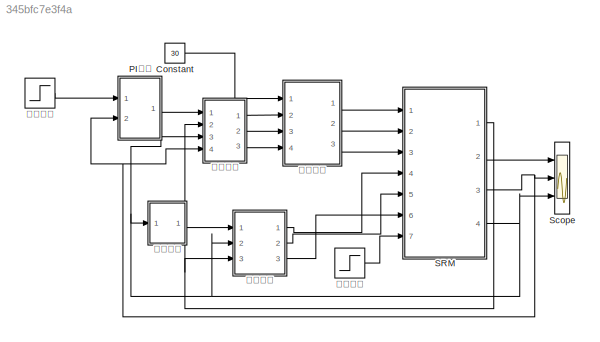
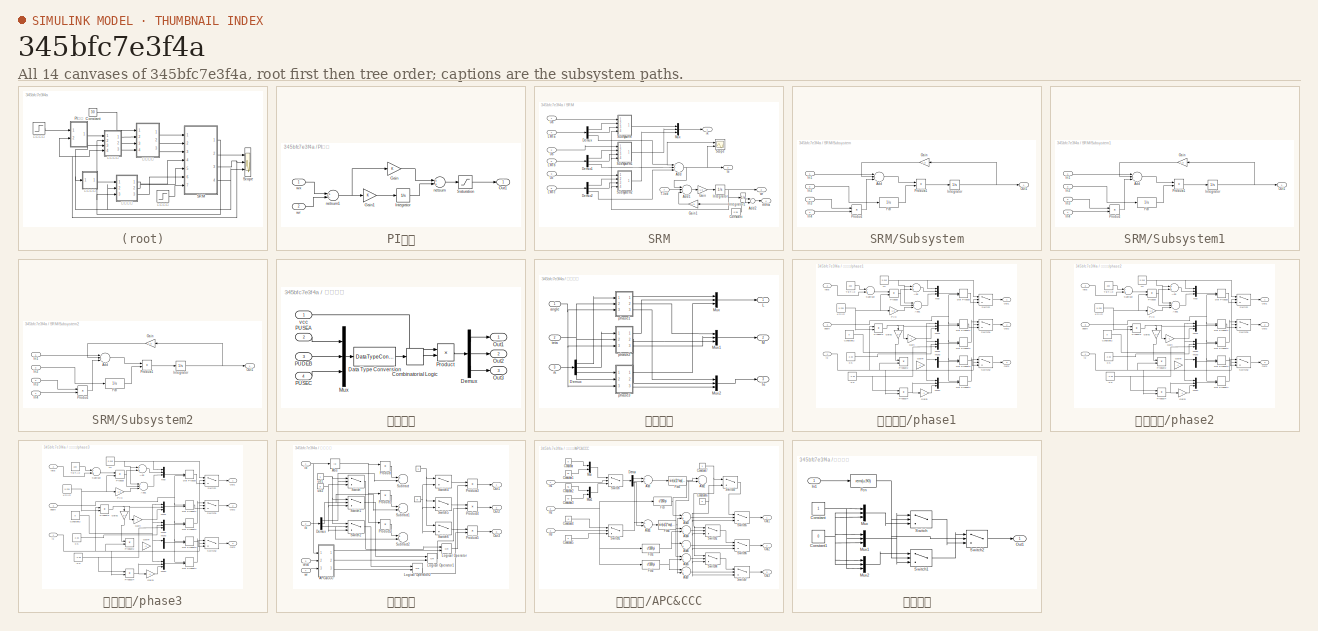
[diagram: thumbnail index - all 14 canvases of the model, root first then tree order]
MODEL slx_345bfc7e3f4a
KIND model
BLOCK [Constant] Constant
  Value = 30
BLOCK [SubSystem] PI控制
  FunctionWithSeparateData = off
  MaskHideContents = off
  MinAlgLoopOccurrences = off
  Opaque = off
  Ports = [2, 1]
  PropExecContextOutsideSubsystem = off
  RTWSystemCode = Auto
  RequestExecContextInheritance = off
BLOCK [Gain] PI控制/Gain
  OutDataTypeStr = Inherit: Inherit via internal rule
  ParamDataTypeStr = Inherit: Inherit via internal rule
  SaturateOnIntegerOverflow = off
BLOCK [Gain] PI控制/Gain1
  OutDataTypeStr = Inherit: Inherit via internal rule
  ParamDataTypeStr = Inherit: Inherit via internal rule
  SaturateOnIntegerOverflow = off
BLOCK [Integrator] PI控制/Integrator
  Ports = [1, 1]
BLOCK [Outport] PI控制/Out1
  IconDisplay = Port number
BLOCK [Saturate] PI控制/Saturation
  InputPortMap = u0
  Ports = [1, 1]
BLOCK [Sum] PI控制/netsum
  Inputs = 2
  Ports = [2, 1]
BLOCK [Sum] PI控制/netsum1
  Inputs = +-
  Ports = [2, 1]
BLOCK [Inport] PI控制/wr
  IconDisplay = Port number
  Port = 2
BLOCK [Inport] PI控制/wx
  IconDisplay = Port number
BLOCK [SubSystem] SRM
  FunctionWithSeparateData = off
  MaskHideContents = off
  MinAlgLoopOccurrences = off
  Opaque = off
  Ports = [7, 4]
  PropExecContextOutsideSubsystem = off
  RTWSystemCode = Auto
  RequestExecContextInheritance = off
BLOCK [Sum] SRM/Add
  InputSameDT = off
  Inputs = +++
  OutDataTypeStr = Inherit: Inherit via internal rule
  Ports = [3, 1]
  SaturateOnIntegerOverflow = off
BLOCK [Sum] SRM/Add1
  InputSameDT = off
  Inputs = +--
  OutDataTypeStr = Inherit: Inherit via internal rule
  Ports = [3, 1]
  SaturateOnIntegerOverflow = off
BLOCK [Sum] SRM/Add2
  InputSameDT = off
  OutDataTypeStr = Inherit: Inherit via internal rule
  Ports = [2, 1]
  SaturateOnIntegerOverflow = off
BLOCK [Constant] SRM/Constant
  Value = 0.28
BLOCK [Demux] SRM/Demux
  DisplayOption = bar
  Outputs = 3
  Ports = [1, 3]
BLOCK [Demux] SRM/Demux1
  DisplayOption = bar
  Outputs = 3
  Ports = [1, 3]
BLOCK [Demux] SRM/Demux2
  DisplayOption = bar
  Outputs = 3
  Ports = [1, 3]
BLOCK [Gain] SRM/Gain
  Gain = 1.3
  OutDataTypeStr = Inherit: Inherit via internal rule
  ParamDataTypeStr = Inherit: Inherit via internal rule
  SaturateOnIntegerOverflow = off
BLOCK [Gain] SRM/Gain1
  Gain = 1.3
  OutDataTypeStr = Inherit: Inherit via internal rule
  ParamDataTypeStr = Inherit: Inherit via internal rule
  SaturateOnIntegerOverflow = off
BLOCK [Integrator] SRM/Integrator
  Ports = [1, 1]
BLOCK [Integrator] SRM/Integrator1
  Ports = [1, 1]
BLOCK [Inport] SRM/LMTa
  IconDisplay = Port number
  Port = 4
BLOCK [Inport] SRM/LMTb
  IconDisplay = Port number
  Port = 5
BLOCK [Inport] SRM/LMTc
  IconDisplay = Port number
  Port = 6
BLOCK [Mux] SRM/Mux
  DisplayOption = bar
  Inputs = 3
  Ports = [3, 1]
BLOCK [Scope] SRM/Scope
  DataFormat = StructureWithTime
  Floating = off
  NumInputPorts = 2
  Ports = [2]
  SampleTime = 0
  ShowLegends = off
  YMax = 5~5
  YMin = -5~-5
BLOCK [SubSystem] SRM/Subsystem
  FunctionWithSeparateData = off
  MaskHideContents = off
  MinAlgLoopOccurrences = off
  Opaque = off
  Ports = [4, 1]
  PropExecContextOutsideSubsystem = off
  RTWSystemCode = Auto
  RequestExecContextInheritance = off
BLOCK [Sum] SRM/Subsystem/Add
  InputSameDT = off
  Inputs = +--
  OutDataTypeStr = Inherit: Inherit via internal rule
  Ports = [3, 1]
  SaturateOnIntegerOverflow = off
BLOCK [Fcn] SRM/Subsystem/Fcn
  Expr = 1/u
BLOCK [Gain] SRM/Subsystem/Gain
  Gain = 1.3
  OutDataTypeStr = Inherit: Inherit via internal rule
  ParamDataTypeStr = Inherit: Inherit via internal rule
  SaturateOnIntegerOverflow = off
BLOCK [Inport] SRM/Subsystem/In1
  IconDisplay = Port number
BLOCK [Inport] SRM/Subsystem/In2
  IconDisplay = Port number
  Port = 2
BLOCK [Inport] SRM/Subsystem/In3
  IconDisplay = Port number
  Port = 3
BLOCK [Inport] SRM/Subsystem/In4
  IconDisplay = Port number
  Port = 4
BLOCK [Integrator] SRM/Subsystem/Integrator
  Ports = [1, 1]
BLOCK [Outport] SRM/Subsystem/Out1
  IconDisplay = Port number
BLOCK [Product] SRM/Subsystem/Product
  InputSameDT = off
  OutDataTypeStr = Inherit: Inherit via internal rule
  Ports = [2, 1]
  RndMeth = Floor
  SaturateOnIntegerOverflow = off
BLOCK [Product] SRM/Subsystem/Product1
  InputSameDT = off
  OutDataTypeStr = Inherit: Inherit via internal rule
  Ports = [2, 1]
  RndMeth = Floor
  SaturateOnIntegerOverflow = off
BLOCK [SubSystem] SRM/Subsystem1
  FunctionWithSeparateData = off
  MaskHideContents = off
  MinAlgLoopOccurrences = off
  Opaque = off
  Ports = [4, 1]
  PropExecContextOutsideSubsystem = off
  RTWSystemCode = Auto
  RequestExecContextInheritance = off
BLOCK [Sum] SRM/Subsystem1/Add
  InputSameDT = off
  Inputs = +--
  OutDataTypeStr = Inherit: Inherit via internal rule
  Ports = [3, 1]
  SaturateOnIntegerOverflow = off
BLOCK [Fcn] SRM/Subsystem1/Fcn
  Expr = 1/u
BLOCK [Gain] SRM/Subsystem1/Gain
  Gain = 1.3
  OutDataTypeStr = Inherit: Inherit via internal rule
  ParamDataTypeStr = Inherit: Inherit via internal rule
  SaturateOnIntegerOverflow = off
BLOCK [Inport] SRM/Subsystem1/In1
  IconDisplay = Port number
BLOCK [Inport] SRM/Subsystem1/In2
  IconDisplay = Port number
  Port = 2
BLOCK [Inport] SRM/Subsystem1/In3
  IconDisplay = Port number
  Port = 3
BLOCK [Inport] SRM/Subsystem1/In4
  IconDisplay = Port number
  Port = 4
BLOCK [Integrator] SRM/Subsystem1/Integrator
  Ports = [1, 1]
BLOCK [Outport] SRM/Subsystem1/Out1
  IconDisplay = Port number
BLOCK [Product] SRM/Subsystem1/Product
  InputSameDT = off
  OutDataTypeStr = Inherit: Inherit via internal rule
  Ports = [2, 1]
  RndMeth = Floor
  SaturateOnIntegerOverflow = off
BLOCK [Product] SRM/Subsystem1/Product1
  InputSameDT = off
  OutDataTypeStr = Inherit: Inherit via internal rule
  Ports = [2, 1]
  RndMeth = Floor
  SaturateOnIntegerOverflow = off
BLOCK [SubSystem] SRM/Subsystem2
  FunctionWithSeparateData = off
  MaskHideContents = off
  MinAlgLoopOccurrences = off
  Opaque = off
  Ports = [4, 1]
  PropExecContextOutsideSubsystem = off
  RTWSystemCode = Auto
  RequestExecContextInheritance = off
BLOCK [Sum] SRM/Subsystem2/Add
  InputSameDT = off
  Inputs = +--
  OutDataTypeStr = Inherit: Inherit via internal rule
  Ports = [3, 1]
  SaturateOnIntegerOverflow = off
BLOCK [Fcn] SRM/Subsystem2/Fcn
  Expr = 1/u
BLOCK [Gain] SRM/Subsystem2/Gain
  Gain = 1.3
  OutDataTypeStr = Inherit: Inherit via internal rule
  ParamDataTypeStr = Inherit: Inherit via internal rule
  SaturateOnIntegerOverflow = off
BLOCK [Inport] SRM/Subsystem2/In1
  IconDisplay = Port number
BLOCK [Inport] SRM/Subsystem2/In2
  IconDisplay = Port number
  Port = 2
BLOCK [Inport] SRM/Subsystem2/In3
  IconDisplay = Port number
  Port = 3
BLOCK [Inport] SRM/Subsystem2/In4
  IconDisplay = Port number
  Port = 4
BLOCK [Integrator] SRM/Subsystem2/Integrator
  Ports = [1, 1]
BLOCK [Outport] SRM/Subsystem2/Out1
  IconDisplay = Port number
BLOCK [Product] SRM/Subsystem2/Product
  InputSameDT = off
  OutDataTypeStr = Inherit: Inherit via internal rule
  Ports = [2, 1]
  RndMeth = Floor
  SaturateOnIntegerOverflow = off
BLOCK [Product] SRM/Subsystem2/Product1
  InputSameDT = off
  OutDataTypeStr = Inherit: Inherit via internal rule
  Ports = [2, 1]
  RndMeth = Floor
  SaturateOnIntegerOverflow = off
BLOCK [Inport] SRM/T-lod
  IconDisplay = Port number
  Port = 7
BLOCK [Inport] SRM/Ua
  IconDisplay = Port number
BLOCK [Inport] SRM/Ub
  IconDisplay = Port number
  Port = 2
BLOCK [Inport] SRM/Uc
  IconDisplay = Port number
  Port = 3
BLOCK [Outport] SRM/ik
  IconDisplay = Port number
BLOCK [Outport] SRM/te
  IconDisplay = Port number
  Port = 2
BLOCK [Outport] SRM/theta
  IconDisplay = Port number
  Port = 4
BLOCK [Outport] SRM/wr
  IconDisplay = Port number
  Port = 3
BLOCK [Scope] Scope
  DataFormat = StructureWithTime
  Floating = off
  NumInputPorts = 3
  Ports = [3]
  SampleTime = 0
  SaveName = ScopeData1
  ShowLegends = off
  YMax = 5~5~5
  YMin = -5~-5~-5
BLOCK [SubSystem] 功率变换
  FunctionWithSeparateData = off
  MaskHideContents = off
  MinAlgLoopOccurrences = off
  Opaque = off
  Ports = [4, 3]
  PropExecContextOutsideSubsystem = off
  RTWSystemCode = Auto
  RequestExecContextInheritance = off
BLOCK [CombinatorialLogic] 功率变换/Combinatorial Logic
BLOCK [DataTypeConversion] 功率变换/Data Type Conversion
  RndMeth = Floor
  SaturateOnIntegerOverflow = off
BLOCK [Demux] 功率变换/Demux
  DisplayOption = bar
  Outputs = 3
  Ports = [1, 3]
BLOCK [Mux] 功率变换/Mux
  DisplayOption = bar
  Inputs = 3
  Ports = [3, 1]
BLOCK [Outport] 功率变换/Out1
  IconDisplay = Port number
BLOCK [Outport] 功率变换/Out2
  IconDisplay = Port number
  Port = 2
BLOCK [Outport] 功率变换/Out3
  IconDisplay = Port number
  Port = 3
BLOCK [Inport] 功率变换/PUDEB
  IconDisplay = Port number
  Port = 3
BLOCK [Inport] 功率变换/PUSEA
  IconDisplay = Port number
  Port = 2
BLOCK [Inport] 功率变换/PUSEC
  IconDisplay = Port number
  Port = 4
BLOCK [Product] 功率变换/Product
  InputSameDT = off
  OutDataTypeStr = Inherit: Inherit via internal rule
  Ports = [2, 1]
  RndMeth = Floor
  SaturateOnIntegerOverflow = off
BLOCK [Inport] 功率变换/vcc
  IconDisplay = Port number
BLOCK [SubSystem] 参数计算
  FunctionWithSeparateData = off
  MaskHideContents = off
  MinAlgLoopOccurrences = off
  Opaque = off
  Ports = [3, 3]
  PropExecContextOutsideSubsystem = off
  RTWSystemCode = Auto
  RequestExecContextInheritance = off
BLOCK [Demux] 参数计算/Demux
  DisplayOption = bar
  Outputs = 3
  Ports = [1, 3]
BLOCK [Outport] 参数计算/L
  IconDisplay = Port number
BLOCK [Outport] 参数计算/M
  IconDisplay = Port number
  Port = 2
BLOCK [Mux] 参数计算/Mux
  DisplayOption = bar
  Inputs = 3
  Ports = [3, 1]
BLOCK [Mux] 参数计算/Mux1
  DisplayOption = bar
  Inputs = 3
  Ports = [3, 1]
BLOCK [Mux] 参数计算/Mux2
  DisplayOption = bar
  Inputs = 3
  Ports = [3, 1]
BLOCK [Outport] 参数计算/Te
  IconDisplay = Port number
  Port = 3
BLOCK [Inport] 参数计算/angle
  IconDisplay = Port number
BLOCK [Inport] 参数计算/ik
  IconDisplay = Port number
  Port = 3
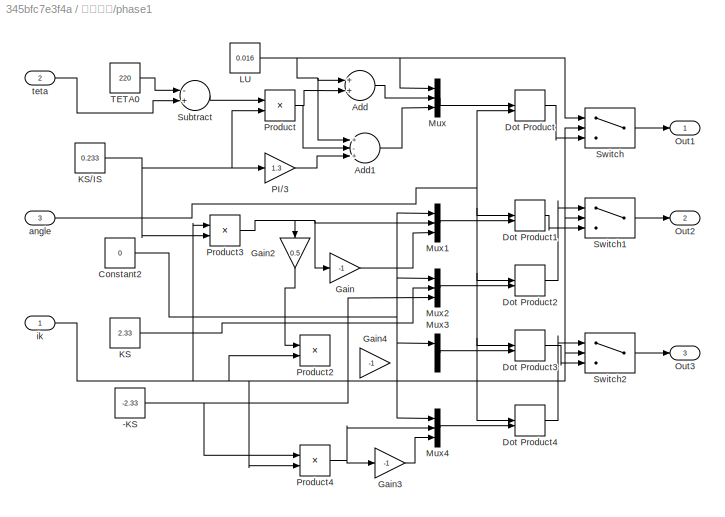
BLOCK [SubSystem] 参数计算/phase1
  FunctionWithSeparateData = off
  MaskHideContents = off
  MinAlgLoopOccurrences = off
  Opaque = off
  Ports = [3, 3]
  PropExecContextOutsideSubsystem = off
  RTWSystemCode = Auto
  RequestExecContextInheritance = off
BLOCK [Constant] 参数计算/phase1/-KS
  Value = -2.33
BLOCK [Sum] 参数计算/phase1/Add
  InputSameDT = off
  OutDataTypeStr = Inherit: Inherit via internal rule
  Ports = [2, 1]
  SaturateOnIntegerOverflow = off
BLOCK [Sum] 参数计算/phase1/Add1
  InputSameDT = off
  Inputs = +-+
  OutDataTypeStr = Inherit: Inherit via internal rule
  Ports = [3, 1]
  SaturateOnIntegerOverflow = off
BLOCK [Constant] 参数计算/phase1/Constant2
  Value = 0
BLOCK [DotProduct] 参数计算/phase1/Dot Product
  OutDataTypeStr = Inherit: Inherit via internal rule
BLOCK [DotProduct] 参数计算/phase1/Dot Product1
  OutDataTypeStr = Inherit: Inherit via internal rule
BLOCK [DotProduct] 参数计算/phase1/Dot Product2
  OutDataTypeStr = Inherit: Inherit via internal rule
BLOCK [DotProduct] 参数计算/phase1/Dot Product3
  OutDataTypeStr = Inherit: Inherit via internal rule
BLOCK [DotProduct] 参数计算/phase1/Dot Product4
  OutDataTypeStr = Inherit: Inherit via internal rule
BLOCK [Gain] 参数计算/phase1/Gain
  Gain = -1
  OutDataTypeStr = Inherit: Inherit via internal rule
  ParamDataTypeStr = Inherit: Inherit via internal rule
  SaturateOnIntegerOverflow = off
BLOCK [Gain] 参数计算/phase1/Gain2
  Gain = 0.5
  OutDataTypeStr = Inherit: Inherit via internal rule
  ParamDataTypeStr = Inherit: Inherit via internal rule
  SaturateOnIntegerOverflow = off
BLOCK [Gain] 参数计算/phase1/Gain3
  Gain = -1
  OutDataTypeStr = Inherit: Inherit via internal rule
  ParamDataTypeStr = Inherit: Inherit via internal rule
  SaturateOnIntegerOverflow = off
BLOCK [Gain] 参数计算/phase1/Gain4
  Gain = -1
  OutDataTypeStr = Inherit: Inherit via internal rule
  ParamDataTypeStr = Inherit: Inherit via internal rule
  SaturateOnIntegerOverflow = off
BLOCK [Constant] 参数计算/phase1/KS
  Value = 2.33
BLOCK [Constant] 参数计算/phase1/KS//IS
  Value = 0.233
BLOCK [Constant] 参数计算/phase1/LU
  Value = 0.016
BLOCK [Mux] 参数计算/phase1/Mux
  DisplayOption = bar
  Inputs = 3
  Ports = [3, 1]
BLOCK [Mux] 参数计算/phase1/Mux1
  DisplayOption = bar
  Inputs = 3
  Ports = [3, 1]
BLOCK [Mux] 参数计算/phase1/Mux2
  DisplayOption = bar
  Inputs = 3
  Ports = [3, 1]
BLOCK [Mux] 参数计算/phase1/Mux3
  DisplayOption = bar
  Inputs = 3
  Ports = [3, 1]
BLOCK [Mux] 参数计算/phase1/Mux4
  DisplayOption = bar
  Inputs = 3
  Ports = [3, 1]
BLOCK [Outport] 参数计算/phase1/Out1
  IconDisplay = Port number
BLOCK [Outport] 参数计算/phase1/Out2
  IconDisplay = Port number
  Port = 2
BLOCK [Outport] 参数计算/phase1/Out3
  IconDisplay = Port number
  Port = 3
BLOCK [Gain] 参数计算/phase1/PI//3
  Gain = 1.3
  OutDataTypeStr = Inherit: Inherit via internal rule
  ParamDataTypeStr = Inherit: Inherit via internal rule
  SaturateOnIntegerOverflow = off
BLOCK [Product] 参数计算/phase1/Product
  InputSameDT = off
  OutDataTypeStr = Inherit: Inherit via internal rule
  Ports = [2, 1]
  RndMeth = Floor
  SaturateOnIntegerOverflow = off
BLOCK [Product] 参数计算/phase1/Product2
  InputSameDT = off
  OutDataTypeStr = Inherit: Inherit via internal rule
  Ports = [2, 1]
  RndMeth = Floor
  SaturateOnIntegerOverflow = off
BLOCK [Product] 参数计算/phase1/Product3
  InputSameDT = off
  OutDataTypeStr = Inherit: Inherit via internal rule
  Ports = [2, 1]
  RndMeth = Floor
  SaturateOnIntegerOverflow = off
BLOCK [Product] 参数计算/phase1/Product4
  InputSameDT = off
  OutDataTypeStr = Inherit: Inherit via internal rule
  Ports = [2, 1]
  RndMeth = Floor
  SaturateOnIntegerOverflow = off
BLOCK [Sum] 参数计算/phase1/Subtract
  InputSameDT = off
  Inputs = -+
  OutDataTypeStr = Inherit: Inherit via internal rule
  Ports = [2, 1]
  SaturateOnIntegerOverflow = off
BLOCK [Switch] 参数计算/phase1/Switch
  InputSameDT = off
  SaturateOnIntegerOverflow = off
BLOCK [Switch] 参数计算/phase1/Switch1
  InputSameDT = off
  SaturateOnIntegerOverflow = off
BLOCK [Switch] 参数计算/phase1/Switch2
  InputSameDT = off
  SaturateOnIntegerOverflow = off
BLOCK [Constant] 参数计算/phase1/TETA0
  Value = 220
BLOCK [Inport] 参数计算/phase1/angle
  IconDisplay = Port number
  Port = 3
BLOCK [Inport] 参数计算/phase1/ik
  IconDisplay = Port number
BLOCK [Inport] 参数计算/phase1/teta
  IconDisplay = Port number
  Port = 2
BLOCK [SubSystem] 参数计算/phase2
  FunctionWithSeparateData = off
  MaskHideContents = off
  MinAlgLoopOccurrences = off
  Opaque = off
  Ports = [3, 3]
  PropExecContextOutsideSubsystem = off
  RTWSystemCode = Auto
  RequestExecContextInheritance = off
BLOCK [Constant] 参数计算/phase2/-KS
  Value = -2.33
BLOCK [Sum] 参数计算/phase2/Add
  InputSameDT = off
  OutDataTypeStr = Inherit: Inherit via internal rule
  Ports = [2, 1]
  SaturateOnIntegerOverflow = off
BLOCK [Sum] 参数计算/phase2/Add1
  InputSameDT = off
  Inputs = +-+
  OutDataTypeStr = Inherit: Inherit via internal rule
  Ports = [3, 1]
  SaturateOnIntegerOverflow = off
BLOCK [Constant] 参数计算/phase2/Constant2
  Value = 0
BLOCK [DotProduct] 参数计算/phase2/Dot Product
  OutDataTypeStr = Inherit: Inherit via internal rule
BLOCK [DotProduct] 参数计算/phase2/Dot Product1
  OutDataTypeStr = Inherit: Inherit via internal rule
BLOCK [DotProduct] 参数计算/phase2/Dot Product2
  OutDataTypeStr = Inherit: Inherit via internal rule
BLOCK [DotProduct] 参数计算/phase2/Dot Product3
  OutDataTypeStr = Inherit: Inherit via internal rule
BLOCK [DotProduct] 参数计算/phase2/Dot Product4
  OutDataTypeStr = Inherit: Inherit via internal rule
BLOCK [Gain] 参数计算/phase2/Gain
  Gain = -1
  OutDataTypeStr = Inherit: Inherit via internal rule
  ParamDataTypeStr = Inherit: Inherit via internal rule
  SaturateOnIntegerOverflow = off
BLOCK [Gain] 参数计算/phase2/Gain2
  Gain = 0.5
  OutDataTypeStr = Inherit: Inherit via internal rule
  ParamDataTypeStr = Inherit: Inherit via internal rule
  SaturateOnIntegerOverflow = off
BLOCK [Gain] 参数计算/phase2/Gain3
  Gain = -1
  OutDataTypeStr = Inherit: Inherit via internal rule
  ParamDataTypeStr = Inherit: Inherit via internal rule
  SaturateOnIntegerOverflow = off
BLOCK [Gain] 参数计算/phase2/Gain4
  Gain = -1
  OutDataTypeStr = Inherit: Inherit via internal rule
  ParamDataTypeStr = Inherit: Inherit via internal rule
  SaturateOnIntegerOverflow = off
BLOCK [Constant] 参数计算/phase2/KS
  Value = 2.33
BLOCK [Constant] 参数计算/phase2/KS//IS
  Value = 0.233
BLOCK [Constant] 参数计算/phase2/LU
  Value = 0.016
BLOCK [Mux] 参数计算/phase2/Mux
  DisplayOption = bar
  Inputs = 3
  Ports = [3, 1]
BLOCK [Mux] 参数计算/phase2/Mux1
  DisplayOption = bar
  Inputs = 3
  Ports = [3, 1]
BLOCK [Mux] 参数计算/phase2/Mux2
  DisplayOption = bar
  Inputs = 3
  Ports = [3, 1]
BLOCK [Mux] 参数计算/phase2/Mux3
  DisplayOption = bar
  Inputs = 3
  Ports = [3, 1]
BLOCK [Mux] 参数计算/phase2/Mux4
  DisplayOption = bar
  Inputs = 3
  Ports = [3, 1]
BLOCK [Outport] 参数计算/phase2/Out1
  IconDisplay = Port number
BLOCK [Outport] 参数计算/phase2/Out2
  IconDisplay = Port number
  Port = 2
BLOCK [Outport] 参数计算/phase2/Out3
  IconDisplay = Port number
  Port = 3
BLOCK [Gain] 参数计算/phase2/PI//3
  Gain = 1.3
  OutDataTypeStr = Inherit: Inherit via internal rule
  ParamDataTypeStr = Inherit: Inherit via internal rule
  SaturateOnIntegerOverflow = off
BLOCK [Product] 参数计算/phase2/Product
  InputSameDT = off
  OutDataTypeStr = Inherit: Inherit via internal rule
  Ports = [2, 1]
  RndMeth = Floor
  SaturateOnIntegerOverflow = off
BLOCK [Product] 参数计算/phase2/Product2
  InputSameDT = off
  OutDataTypeStr = Inherit: Inherit via internal rule
  Ports = [2, 1]
  RndMeth = Floor
  SaturateOnIntegerOverflow = off
BLOCK [Product] 参数计算/phase2/Product3
  InputSameDT = off
  OutDataTypeStr = Inherit: Inherit via internal rule
  Ports = [2, 1]
  RndMeth = Floor
  SaturateOnIntegerOverflow = off
BLOCK [Product] 参数计算/phase2/Product4
  InputSameDT = off
  OutDataTypeStr = Inherit: Inherit via internal rule
  Ports = [2, 1]
  RndMeth = Floor
  SaturateOnIntegerOverflow = off
BLOCK [Sum] 参数计算/phase2/Subtract
  InputSameDT = off
  Inputs = -+
  OutDataTypeStr = Inherit: Inherit via internal rule
  Ports = [2, 1]
  SaturateOnIntegerOverflow = off
BLOCK [Switch] 参数计算/phase2/Switch
  InputSameDT = off
  SaturateOnIntegerOverflow = off
BLOCK [Switch] 参数计算/phase2/Switch1
  InputSameDT = off
  SaturateOnIntegerOverflow = off
BLOCK [Switch] 参数计算/phase2/Switch2
  InputSameDT = off
  SaturateOnIntegerOverflow = off
BLOCK [Constant] 参数计算/phase2/TETA0
  Value = 220
BLOCK [Inport] 参数计算/phase2/angle
  IconDisplay = Port number
  Port = 3
BLOCK [Inport] 参数计算/phase2/ik
  IconDisplay = Port number
BLOCK [Inport] 参数计算/phase2/teta
  IconDisplay = Port number
  Port = 2
BLOCK [SubSystem] 参数计算/phase3
  FunctionWithSeparateData = off
  MaskHideContents = off
  MinAlgLoopOccurrences = off
  Opaque = off
  Ports = [3, 3]
  PropExecContextOutsideSubsystem = off
  RTWSystemCode = Auto
  RequestExecContextInheritance = off
BLOCK [Constant] 参数计算/phase3/-KS
  Value = -2.33
BLOCK [Sum] 参数计算/phase3/Add
  InputSameDT = off
  OutDataTypeStr = Inherit: Inherit via internal rule
  Ports = [2, 1]
  SaturateOnIntegerOverflow = off
BLOCK [Sum] 参数计算/phase3/Add1
  InputSameDT = off
  Inputs = +-+
  OutDataTypeStr = Inherit: Inherit via internal rule
  Ports = [3, 1]
  SaturateOnIntegerOverflow = off
BLOCK [Constant] 参数计算/phase3/Constant2
  Value = 0
BLOCK [DotProduct] 参数计算/phase3/Dot Product
  OutDataTypeStr = Inherit: Inherit via internal rule
BLOCK [DotProduct] 参数计算/phase3/Dot Product1
  OutDataTypeStr = Inherit: Inherit via internal rule
BLOCK [DotProduct] 参数计算/phase3/Dot Product2
  OutDataTypeStr = Inherit: Inherit via internal rule
BLOCK [DotProduct] 参数计算/phase3/Dot Product3
  OutDataTypeStr = Inherit: Inherit via internal rule
BLOCK [DotProduct] 参数计算/phase3/Dot Product4
  OutDataTypeStr = Inherit: Inherit via internal rule
BLOCK [Gain] 参数计算/phase3/Gain
  Gain = -1
  OutDataTypeStr = Inherit: Inherit via internal rule
  ParamDataTypeStr = Inherit: Inherit via internal rule
  SaturateOnIntegerOverflow = off
BLOCK [Gain] 参数计算/phase3/Gain2
  Gain = 0.5
  OutDataTypeStr = Inherit: Inherit via internal rule
  ParamDataTypeStr = Inherit: Inherit via internal rule
  SaturateOnIntegerOverflow = off
BLOCK [Gain] 参数计算/phase3/Gain3
  Gain = -1
  OutDataTypeStr = Inherit: Inherit via internal rule
  ParamDataTypeStr = Inherit: Inherit via internal rule
  SaturateOnIntegerOverflow = off
BLOCK [Gain] 参数计算/phase3/Gain4
  Gain = -1
  OutDataTypeStr = Inherit: Inherit via internal rule
  ParamDataTypeStr = Inherit: Inherit via internal rule
  SaturateOnIntegerOverflow = off
BLOCK [Constant] 参数计算/phase3/KS
  Value = 2.33
BLOCK [Constant] 参数计算/phase3/KS//IS
  Value = 0.233
BLOCK [Constant] 参数计算/phase3/LU
  Value = 0.016
BLOCK [Mux] 参数计算/phase3/Mux
  DisplayOption = bar
  Inputs = 3
  Ports = [3, 1]
BLOCK [Mux] 参数计算/phase3/Mux1
  DisplayOption = bar
  Inputs = 3
  Ports = [3, 1]
BLOCK [Mux] 参数计算/phase3/Mux2
  DisplayOption = bar
  Inputs = 3
  Ports = [3, 1]
BLOCK [Mux] 参数计算/phase3/Mux3
  DisplayOption = bar
  Inputs = 3
  Ports = [3, 1]
BLOCK [Mux] 参数计算/phase3/Mux4
  DisplayOption = bar
  Inputs = 3
  Ports = [3, 1]
BLOCK [Outport] 参数计算/phase3/Out1
  IconDisplay = Port number
BLOCK [Outport] 参数计算/phase3/Out2
  IconDisplay = Port number
  Port = 2
BLOCK [Outport] 参数计算/phase3/Out3
  IconDisplay = Port number
  Port = 3
BLOCK [Gain] 参数计算/phase3/PI//3
  Gain = 1.3
  OutDataTypeStr = Inherit: Inherit via internal rule
  ParamDataTypeStr = Inherit: Inherit via internal rule
  SaturateOnIntegerOverflow = off
BLOCK [Product] 参数计算/phase3/Product
  InputSameDT = off
  OutDataTypeStr = Inherit: Inherit via internal rule
  Ports = [2, 1]
  RndMeth = Floor
  SaturateOnIntegerOverflow = off
BLOCK [Product] 参数计算/phase3/Product2
  InputSameDT = off
  OutDataTypeStr = Inherit: Inherit via internal rule
  Ports = [2, 1]
  RndMeth = Floor
  SaturateOnIntegerOverflow = off
BLOCK [Product] 参数计算/phase3/Product3
  InputSameDT = off
  OutDataTypeStr = Inherit: Inherit via internal rule
  Ports = [2, 1]
  RndMeth = Floor
  SaturateOnIntegerOverflow = off
BLOCK [Product] 参数计算/phase3/Product4
  InputSameDT = off
  OutDataTypeStr = Inherit: Inherit via internal rule
  Ports = [2, 1]
  RndMeth = Floor
  SaturateOnIntegerOverflow = off
BLOCK [Sum] 参数计算/phase3/Subtract
  InputSameDT = off
  Inputs = -+
  OutDataTypeStr = Inherit: Inherit via internal rule
  Ports = [2, 1]
  SaturateOnIntegerOverflow = off
BLOCK [Switch] 参数计算/phase3/Switch
  InputSameDT = off
  SaturateOnIntegerOverflow = off
BLOCK [Switch] 参数计算/phase3/Switch1
  InputSameDT = off
  SaturateOnIntegerOverflow = off
BLOCK [Switch] 参数计算/phase3/Switch2
  InputSameDT = off
  SaturateOnIntegerOverflow = off
BLOCK [Constant] 参数计算/phase3/TETA0
  Value = 220
BLOCK [Inport] 参数计算/phase3/angle
  IconDisplay = Port number
  Port = 3
BLOCK [Inport] 参数计算/phase3/ik
  IconDisplay = Port number
BLOCK [Inport] 参数计算/phase3/teta
  IconDisplay = Port number
  Port = 2
BLOCK [Inport] 参数计算/teta
  IconDisplay = Port number
  Port = 2
BLOCK [SubSystem] 电流控制
  FunctionWithSeparateData = off
  MaskHideContents = off
  MinAlgLoopOccurrences = off
  Opaque = off
  Ports = [4, 3]
  PropExecContextOutsideSubsystem = off
  RTWSystemCode = Auto
  RequestExecContextInheritance = off
BLOCK [Constant] 电流控制/ 
  Value = 0
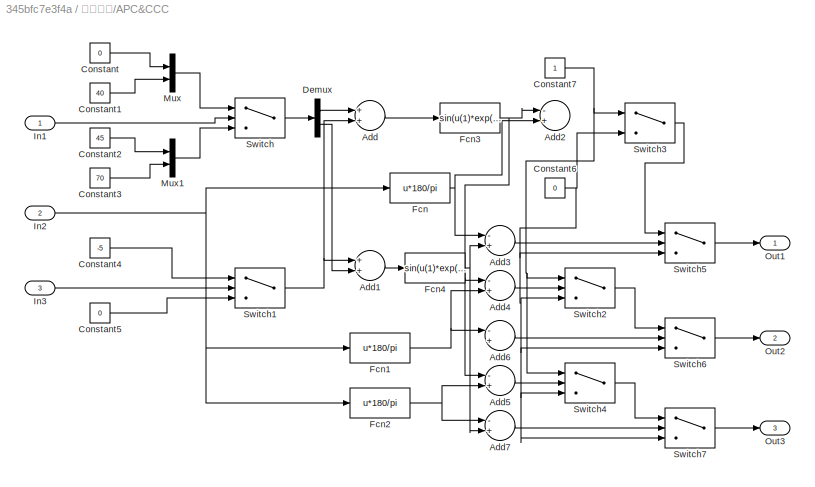
BLOCK [SubSystem] 电流控制/APC&CCC
  FunctionWithSeparateData = off
  MaskHideContents = off
  MinAlgLoopOccurrences = off
  Opaque = off
  Ports = [3, 3]
  PropExecContextOutsideSubsystem = off
  RTWSystemCode = Auto
  RequestExecContextInheritance = off
BLOCK [Sum] 电流控制/APC&CCC/Add
  InputSameDT = off
  OutDataTypeStr = Inherit: Inherit via internal rule
  Ports = [2, 1]
  SaturateOnIntegerOverflow = off
BLOCK [Sum] 电流控制/APC&CCC/Add1
  InputSameDT = off
  OutDataTypeStr = Inherit: Inherit via internal rule
  Ports = [2, 1]
  SaturateOnIntegerOverflow = off
BLOCK [Sum] 电流控制/APC&CCC/Add2
  InputSameDT = off
  Inputs = -+
  OutDataTypeStr = Inherit: Inherit via internal rule
  Ports = [2, 1]
  SaturateOnIntegerOverflow = off
BLOCK [Sum] 电流控制/APC&CCC/Add3
  InputSameDT = off
  Inputs = -+
  OutDataTypeStr = Inherit: Inherit via internal rule
  Ports = [2, 1]
  SaturateOnIntegerOverflow = off
BLOCK [Sum] 电流控制/APC&CCC/Add4
  InputSameDT = off
  Inputs = -+
  OutDataTypeStr = Inherit: Inherit via internal rule
  Ports = [2, 1]
  SaturateOnIntegerOverflow = off
BLOCK [Sum] 电流控制/APC&CCC/Add5
  InputSameDT = off
  Inputs = -+
  OutDataTypeStr = Inherit: Inherit via internal rule
  Ports = [2, 1]
  SaturateOnIntegerOverflow = off
BLOCK [Sum] 电流控制/APC&CCC/Add6
  InputSameDT = off
  Inputs = -+
  OutDataTypeStr = Inherit: Inherit via internal rule
  Ports = [2, 1]
  SaturateOnIntegerOverflow = off
BLOCK [Sum] 电流控制/APC&CCC/Add7
  InputSameDT = off
  Inputs = -+
  OutDataTypeStr = Inherit: Inherit via internal rule
  Ports = [2, 1]
  SaturateOnIntegerOverflow = off
BLOCK [Constant] 电流控制/APC&CCC/Constant
  Value = 0
BLOCK [Constant] 电流控制/APC&CCC/Constant1
  Value = 40
BLOCK [Constant] 电流控制/APC&CCC/Constant2
  Value = 45
BLOCK [Constant] 电流控制/APC&CCC/Constant3
  Value = 70
BLOCK [Constant] 电流控制/APC&CCC/Constant4
  Value = -5
BLOCK [Constant] 电流控制/APC&CCC/Constant5
  Value = 0
BLOCK [Constant] 电流控制/APC&CCC/Constant6
  Value = 0
BLOCK [Constant] 电流控制/APC&CCC/Constant7
BLOCK [Demux] 电流控制/APC&CCC/Demux
  DisplayOption = bar
  Outputs = 2
  Ports = [1, 2]
BLOCK [Fcn] 电流控制/APC&CCC/Fcn
  Expr = u*180/pi
BLOCK [Fcn] 电流控制/APC&CCC/Fcn1
  Expr = u*180/pi
BLOCK [Fcn] 电流控制/APC&CCC/Fcn2
  Expr = u*180/pi
BLOCK [Fcn] 电流控制/APC&CCC/Fcn3
  Expr = sin(u(1)*exp(2.3*(-u(2))))
BLOCK [Fcn] 电流控制/APC&CCC/Fcn4
  Expr = sin(u(1)*exp(2.3*(-u(2))))
BLOCK [Inport] 电流控制/APC&CCC/In1
  IconDisplay = Port number
BLOCK [Inport] 电流控制/APC&CCC/In2
  IconDisplay = Port number
  Port = 2
BLOCK [Inport] 电流控制/APC&CCC/In3
  IconDisplay = Port number
  Port = 3
BLOCK [Mux] 电流控制/APC&CCC/Mux
  DisplayOption = bar
  Inputs = 2
  Ports = [2, 1]
BLOCK [Mux] 电流控制/APC&CCC/Mux1
  DisplayOption = bar
  Inputs = 2
  Ports = [2, 1]
BLOCK [Outport] 电流控制/APC&CCC/Out1
  IconDisplay = Port number
BLOCK [Outport] 电流控制/APC&CCC/Out2
  IconDisplay = Port number
  Port = 2
BLOCK [Outport] 电流控制/APC&CCC/Out3
  IconDisplay = Port number
  Port = 3
BLOCK [Switch] 电流控制/APC&CCC/Switch
  InputSameDT = off
  SaturateOnIntegerOverflow = off
BLOCK [Switch] 电流控制/APC&CCC/Switch1
  InputSameDT = off
  SaturateOnIntegerOverflow = off
BLOCK [Switch] 电流控制/APC&CCC/Switch2
  InputSameDT = off
  SaturateOnIntegerOverflow = off
BLOCK [Switch] 电流控制/APC&CCC/Switch3
  InputSameDT = off
  SaturateOnIntegerOverflow = off
BLOCK [Switch] 电流控制/APC&CCC/Switch4
  InputSameDT = off
  SaturateOnIntegerOverflow = off
BLOCK [Switch] 电流控制/APC&CCC/Switch5
  InputSameDT = off
  SaturateOnIntegerOverflow = off
BLOCK [Switch] 电流控制/APC&CCC/Switch6
  InputSameDT = off
  SaturateOnIntegerOverflow = off
BLOCK [Switch] 电流控制/APC&CCC/Switch7
  InputSameDT = off
  SaturateOnIntegerOverflow = off
BLOCK [Abs] 电流控制/Abs
  SaturateOnIntegerOverflow = off
BLOCK [Demux] 电流控制/Demux
  DisplayOption = bar
  Outputs = 3
  Ports = [1, 3]
BLOCK [Logic] 电流控制/Logical Operator
  AllPortsSameDT = off
  Operator = OR
  OutDataTypeStr = boolean
  Ports = [2, 1]
BLOCK [Logic] 电流控制/Logical Operator1
  AllPortsSameDT = off
  Operator = OR
  OutDataTypeStr = boolean
  Ports = [2, 1]
BLOCK [Logic] 电流控制/Logical Operator2
  AllPortsSameDT = off
  Operator = OR
  OutDataTypeStr = boolean
  Ports = [2, 1]
BLOCK [Outport] 电流控制/Out1
  IconDisplay = Port number
BLOCK [Outport] 电流控制/Out2
  IconDisplay = Port number
  Port = 2
BLOCK [Outport] 电流控制/Out3
  IconDisplay = Port number
  Port = 3
BLOCK [Product] 电流控制/Product
  InputSameDT = off
  OutDataTypeStr = Inherit: Inherit via internal rule
  Ports = [2, 1]
  RndMeth = Floor
  SaturateOnIntegerOverflow = off
BLOCK [Product] 电流控制/Product1
  InputSameDT = off
  OutDataTypeStr = Inherit: Inherit via internal rule
  Ports = [2, 1]
  RndMeth = Floor
  SaturateOnIntegerOverflow = off
BLOCK [Product] 电流控制/Product2
  InputSameDT = off
  OutDataTypeStr = Inherit: Inherit via internal rule
  Ports = [2, 1]
  RndMeth = Floor
  SaturateOnIntegerOverflow = off
BLOCK [Product] 电流控制/Product3
  InputSameDT = off
  OutDataTypeStr = Inherit: Inherit via internal rule
  Ports = [2, 1]
  RndMeth = Floor
  SaturateOnIntegerOverflow = off
BLOCK [Product] 电流控制/Product4
  InputSameDT = off
  OutDataTypeStr = Inherit: Inherit via internal rule
  Ports = [2, 1]
  RndMeth = Floor
  SaturateOnIntegerOverflow = off
BLOCK [Product] 电流控制/Product5
  InputSameDT = off
  OutDataTypeStr = Inherit: Inherit via internal rule
  Ports = [2, 1]
  RndMeth = Floor
  SaturateOnIntegerOverflow = off
BLOCK [Sum] 电流控制/Subtract
  InputSameDT = off
  Inputs = +-
  OutDataTypeStr = Inherit: Inherit via internal rule
  Ports = [2, 1]
  SaturateOnIntegerOverflow = off
BLOCK [Sum] 电流控制/Subtract1
  InputSameDT = off
  Inputs = +-
  OutDataTypeStr = Inherit: Inherit via internal rule
  Ports = [2, 1]
  SaturateOnIntegerOverflow = off
BLOCK [Sum] 电流控制/Subtract2
  InputSameDT = off
  Inputs = +-
  OutDataTypeStr = Inherit: Inherit via internal rule
  Ports = [2, 1]
  SaturateOnIntegerOverflow = off
BLOCK [Switch] 电流控制/Switch
  InputSameDT = off
  SaturateOnIntegerOverflow = off
BLOCK [Switch] 电流控制/Switch1
  InputSameDT = off
  SaturateOnIntegerOverflow = off
BLOCK [Switch] 电流控制/Switch2
  InputSameDT = off
  SaturateOnIntegerOverflow = off
BLOCK [Switch] 电流控制/Switch4
  InputSameDT = off
  SaturateOnIntegerOverflow = off
BLOCK [Switch] 电流控制/Switch5
  InputSameDT = off
  SaturateOnIntegerOverflow = off
BLOCK [Switch] 电流控制/Switch6
  InputSameDT = off
  SaturateOnIntegerOverflow = off
BLOCK [Inport] 电流控制/ik
  IconDisplay = Port number
  Port = 2
BLOCK [Inport] 电流控制/io
  IconDisplay = Port number
BLOCK [Inport] 电流控制/teta
  IconDisplay = Port number
  Port = 3
BLOCK [Constant] 电流控制/ud1
BLOCK [Constant] 电流控制/ud2
  Value = 0
BLOCK [Inport] 电流控制/wr
  IconDisplay = Port number
  Port = 4
BLOCK [Step] 负载转矩
  SampleTime = 0
BLOCK [SubSystem] 转角选择
  FunctionWithSeparateData = off
  MaskHideContents = off
  MinAlgLoopOccurrences = off
  Opaque = off
  Ports = [1, 1]
  PropExecContextOutsideSubsystem = off
  RTWSystemCode = Auto
  RequestExecContextInheritance = off
BLOCK [Constant] 转角选择/Constant
BLOCK [Constant] 转角选择/Constant1
  Value = 0
BLOCK [Fcn] 转角选择/Fcn
  Expr = rem(u,90)
BLOCK [Inport] 转角选择/In1
  IconDisplay = Port number
BLOCK [Mux] 转角选择/Mux
  DisplayOption = bar
  Inputs = 3
  Ports = [3, 1]
BLOCK [Mux] 转角选择/Mux1
  DisplayOption = bar
  Inputs = 3
  Ports = [3, 1]
BLOCK [Mux] 转角选择/Mux2
  DisplayOption = bar
  Inputs = 3
  Ports = [3, 1]
BLOCK [Outport] 转角选择/Out1
  IconDisplay = Port number
BLOCK [Switch] 转角选择/Switch
  InputSameDT = off
  SaturateOnIntegerOverflow = off
BLOCK [Switch] 转角选择/Switch1
  InputSameDT = off
  SaturateOnIntegerOverflow = off
BLOCK [Switch] 转角选择/Switch2
  InputSameDT = off
  SaturateOnIntegerOverflow = off
BLOCK [Step] 转速给定
  SampleTime = 0
LINE Constant:1 -> 功率变换:1
LINE PI控制/Gain1:1 -> PI控制/Integrator:1
LINE PI控制/Gain:1 -> PI控制/netsum:1
LINE PI控制/Integrator:1 -> PI控制/netsum:2
LINE PI控制/Saturation:1 -> PI控制/Out1:1
NET PI控制/netsum1:1 -> PI控制/Gain1:1, PI控制/Gain:1
LINE PI控制/netsum:1 -> PI控制/Saturation:1
LINE PI控制/wr:1 -> PI控制/netsum1:2
LINE PI控制/wx:1 -> PI控制/netsum1:1
LINE PI控制:1 -> 电流控制:1
LINE SRM/Add1:1 -> SRM/Gain:1
LINE SRM/Add2:1 -> SRM/theta:1
NET SRM/Add:1 -> SRM/Add1:1, SRM/Scope:2, SRM/te:1
LINE SRM/Constant:1 -> SRM/Add2:2
LINE SRM/Demux1:1 -> SRM/Subsystem1:2
LINE SRM/Demux1:2 -> SRM/Subsystem1:3
LINE SRM/Demux1:3 -> SRM/Add:2
LINE SRM/Demux2:1 -> SRM/Subsystem2:2
LINE SRM/Demux2:2 -> SRM/Subsystem2:3
LINE SRM/Demux2:3 -> SRM/Add:3
LINE SRM/Demux:1 -> SRM/Subsystem:2
LINE SRM/Demux:2 -> SRM/Subsystem:3
NET SRM/Demux:3 -> SRM/Add:1, SRM/Scope:1
LINE SRM/Gain1:1 -> SRM/Add1:3
LINE SRM/Gain:1 -> SRM/Integrator:1
LINE SRM/Integrator1:1 -> SRM/Add2:1
NET SRM/Integrator:1 -> SRM/Gain1:1, SRM/Integrator1:1, SRM/Subsystem1:4, SRM/Subsystem2:4, SRM/Subsystem:4, SRM/wr:1
LINE SRM/LMTa:1 -> SRM/Demux:1
LINE SRM/LMTb:1 -> SRM/Demux1:1
LINE SRM/LMTc:1 -> SRM/Demux2:1
LINE SRM/Mux:1 -> SRM/ik:1
LINE SRM/Subsystem/Add:1 -> SRM/Subsystem/Product1:1
LINE SRM/Subsystem/Fcn:1 -> SRM/Subsystem/Product1:2
LINE SRM/Subsystem/Gain:1 -> SRM/Subsystem/Add:2
LINE SRM/Subsystem/In1:1 -> SRM/Subsystem/Add:1
LINE SRM/Subsystem/In2:1 -> SRM/Subsystem/Fcn:1
LINE SRM/Subsystem/In3:1 -> SRM/Subsystem/Product:1
LINE SRM/Subsystem/In4:1 -> SRM/Subsystem/Product:2
NET SRM/Subsystem/Integrator:1 -> SRM/Subsystem/Gain:1, SRM/Subsystem/Out1:1
LINE SRM/Subsystem/Product1:1 -> SRM/Subsystem/Integrator:1
LINE SRM/Subsystem/Product:1 -> SRM/Subsystem/Add:3
LINE SRM/Subsystem1/Add:1 -> SRM/Subsystem1/Product1:1
LINE SRM/Subsystem1/Fcn:1 -> SRM/Subsystem1/Product1:2
LINE SRM/Subsystem1/Gain:1 -> SRM/Subsystem1/Add:2
LINE SRM/Subsystem1/In1:1 -> SRM/Subsystem1/Add:1
LINE SRM/Subsystem1/In2:1 -> SRM/Subsystem1/Fcn:1
LINE SRM/Subsystem1/In3:1 -> SRM/Subsystem1/Product:1
LINE SRM/Subsystem1/In4:1 -> SRM/Subsystem1/Product:2
NET SRM/Subsystem1/Integrator:1 -> SRM/Subsystem1/Gain:1, SRM/Subsystem1/Out1:1
LINE SRM/Subsystem1/Product1:1 -> SRM/Subsystem1/Integrator:1
LINE SRM/Subsystem1/Product:1 -> SRM/Subsystem1/Add:3
LINE SRM/Subsystem1:1 -> SRM/Mux:2
LINE SRM/Subsystem2/Add:1 -> SRM/Subsystem2/Product1:1
LINE SRM/Subsystem2/Fcn:1 -> SRM/Subsystem2/Product1:2
LINE SRM/Subsystem2/Gain:1 -> SRM/Subsystem2/Add:2
LINE SRM/Subsystem2/In1:1 -> SRM/Subsystem2/Add:1
LINE SRM/Subsystem2/In2:1 -> SRM/Subsystem2/Fcn:1
LINE SRM/Subsystem2/In3:1 -> SRM/Subsystem2/Product:1
LINE SRM/Subsystem2/In4:1 -> SRM/Subsystem2/Product:2
NET SRM/Subsystem2/Integrator:1 -> SRM/Subsystem2/Gain:1, SRM/Subsystem2/Out1:1
LINE SRM/Subsystem2/Product1:1 -> SRM/Subsystem2/Integrator:1
LINE SRM/Subsystem2/Product:1 -> SRM/Subsystem2/Add:3
LINE SRM/Subsystem2:1 -> SRM/Mux:3
LINE SRM/Subsystem:1 -> SRM/Mux:1
LINE SRM/T-lod:1 -> SRM/Add1:2
LINE SRM/Ua:1 -> SRM/Subsystem:1
LINE SRM/Ub:1 -> SRM/Subsystem1:1
LINE SRM/Uc:1 -> SRM/Subsystem2:1
NET SRM:1 -> 参数计算:3, 电流控制:2
LINE SRM:2 -> Scope:1
NET SRM:3 -> PI控制:2, Scope:2, 电流控制:4
NET SRM:4 -> Scope:3, 参数计算:2, 电流控制:3, 转角选择:1
LINE 功率变换/Combinatorial Logic:1 -> 功率变换/Product:2
LINE 功率变换/Data Type Conversion:1 -> 功率变换/Combinatorial Logic:1
LINE 功率变换/Demux:1 -> 功率变换/Out1:1
LINE 功率变换/Demux:2 -> 功率变换/Out2:1
LINE 功率变换/Demux:3 -> 功率变换/Out3:1
LINE 功率变换/Mux:1 -> 功率变换/Data Type Conversion:1
LINE 功率变换/PUDEB:1 -> 功率变换/Mux:2
LINE 功率变换/PUSEA:1 -> 功率变换/Mux:1
LINE 功率变换/PUSEC:1 -> 功率变换/Mux:3
LINE 功率变换/Product:1 -> 功率变换/Demux:1
LINE 功率变换/vcc:1 -> 功率变换/Product:1
LINE 功率变换:1 -> SRM:1
LINE 功率变换:2 -> SRM:2
LINE 功率变换:3 -> SRM:3
LINE 参数计算/Demux:1 -> 参数计算/phase1:1
LINE 参数计算/Demux:2 -> 参数计算/phase2:1
LINE 参数计算/Demux:3 -> 参数计算/phase3:1
LINE 参数计算/Mux1:1 -> 参数计算/M:1
LINE 参数计算/Mux2:1 -> 参数计算/Te:1
LINE 参数计算/Mux:1 -> 参数计算/L:1
NET 参数计算/angle:1 -> 参数计算/phase1:3, 参数计算/phase2:3, 参数计算/phase3:3
LINE 参数计算/ik:1 -> 参数计算/Demux:1
NET 参数计算/phase1/-KS:1 -> 参数计算/phase1/Mux2:3, 参数计算/phase1/Product4:1
LINE 参数计算/phase1/Add1:1 -> 参数计算/phase1/Mux:3
LINE 参数计算/phase1/Add:1 -> 参数计算/phase1/Mux:2
NET 参数计算/phase1/Constant2:1 -> 参数计算/phase1/Mux1:1, 参数计算/phase1/Mux2:1, 参数计算/phase1/Mux3:1, 参数计算/phase1/Mux4:1
LINE 参数计算/phase1/Dot Product1:1 -> 参数计算/phase1/Switch1:3
LINE 参数计算/phase1/Dot Product2:1 -> 参数计算/phase1/Switch1:1
LINE 参数计算/phase1/Dot Product3:1 -> 参数计算/phase1/Switch2:3
LINE 参数计算/phase1/Dot Product4:1 -> 参数计算/phase1/Switch2:1
LINE 参数计算/phase1/Dot Product:1 -> 参数计算/phase1/Switch:3
LINE 参数计算/phase1/Gain2:1 -> 参数计算/phase1/Product2:1
LINE 参数计算/phase1/Gain3:1 -> 参数计算/phase1/Mux4:3
LINE 参数计算/phase1/Gain:1 -> 参数计算/phase1/Mux1:3
NET 参数计算/phase1/KS//IS:1 -> 参数计算/phase1/PI//3:1, 参数计算/phase1/Product3:2, 参数计算/phase1/Product:2
LINE 参数计算/phase1/KS:1 -> 参数计算/phase1/Mux2:2
NET 参数计算/phase1/LU:1 -> 参数计算/phase1/Add1:1, 参数计算/phase1/Add:1, 参数计算/phase1/Mux:1, 参数计算/phase1/Switch:1
LINE 参数计算/phase1/Mux1:1 -> 参数计算/phase1/Dot Product1:2
LINE 参数计算/phase1/Mux2:1 -> 参数计算/phase1/Dot Product2:2
LINE 参数计算/phase1/Mux3:1 -> 参数计算/phase1/Dot Product3:2
LINE 参数计算/phase1/Mux4:1 -> 参数计算/phase1/Dot Product4:2
LINE 参数计算/phase1/Mux:1 -> 参数计算/phase1/Dot Product:1
LINE 参数计算/phase1/PI//3:1 -> 参数计算/phase1/Add1:3
NET 参数计算/phase1/Product3:1 -> 参数计算/phase1/Gain2:1, 参数计算/phase1/Gain:1, 参数计算/phase1/Mux1:2
NET 参数计算/phase1/Product4:1 -> 参数计算/phase1/Gain3:1, 参数计算/phase1/Mux4:2
NET 参数计算/phase1/Product:1 -> 参数计算/phase1/Add1:2, 参数计算/phase1/Add:2
LINE 参数计算/phase1/Subtract:1 -> 参数计算/phase1/Product:1
LINE 参数计算/phase1/Switch1:1 -> 参数计算/phase1/Out2:1
LINE 参数计算/phase1/Switch2:1 -> 参数计算/phase1/Out3:1
LINE 参数计算/phase1/Switch:1 -> 参数计算/phase1/Out1:1
LINE 参数计算/phase1/TETA0:1 -> 参数计算/phase1/Subtract:1
NET 参数计算/phase1/angle:1 -> 参数计算/phase1/Dot Product1:1, 参数计算/phase1/Dot Product2:1, 参数计算/phase1/Dot Product3:1, 参数计算/phase1/Dot Product4:1, 参数计算/phase1/Dot Product:2
NET 参数计算/phase1/ik:1 -> 参数计算/phase1/Product2:2, 参数计算/phase1/Product3:1, 参数计算/phase1/Product4:2, 参数计算/phase1/Switch1:2, 参数计算/phase1/Switch2:2, 参数计算/phase1/Switch:2
LINE 参数计算/phase1/teta:1 -> 参数计算/phase1/Subtract:2
LINE 参数计算/phase1:1 -> 参数计算/Mux:1
LINE 参数计算/phase1:2 -> 参数计算/Mux1:1
LINE 参数计算/phase1:3 -> 参数计算/Mux2:1
NET 参数计算/phase2/-KS:1 -> 参数计算/phase2/Mux2:3, 参数计算/phase2/Product4:1
LINE 参数计算/phase2/Add1:1 -> 参数计算/phase2/Mux:3
LINE 参数计算/phase2/Add:1 -> 参数计算/phase2/Mux:2
NET 参数计算/phase2/Constant2:1 -> 参数计算/phase2/Mux1:1, 参数计算/phase2/Mux2:1, 参数计算/phase2/Mux3:1, 参数计算/phase2/Mux4:1
LINE 参数计算/phase2/Dot Product1:1 -> 参数计算/phase2/Switch1:3
LINE 参数计算/phase2/Dot Product2:1 -> 参数计算/phase2/Switch1:1
LINE 参数计算/phase2/Dot Product3:1 -> 参数计算/phase2/Switch2:3
LINE 参数计算/phase2/Dot Product4:1 -> 参数计算/phase2/Switch2:1
LINE 参数计算/phase2/Dot Product:1 -> 参数计算/phase2/Switch:3
LINE 参数计算/phase2/Gain2:1 -> 参数计算/phase2/Product2:1
LINE 参数计算/phase2/Gain3:1 -> 参数计算/phase2/Mux4:3
LINE 参数计算/phase2/Gain:1 -> 参数计算/phase2/Mux1:3
NET 参数计算/phase2/KS//IS:1 -> 参数计算/phase2/PI//3:1, 参数计算/phase2/Product3:2, 参数计算/phase2/Product:2
LINE 参数计算/phase2/KS:1 -> 参数计算/phase2/Mux2:2
NET 参数计算/phase2/LU:1 -> 参数计算/phase2/Add1:1, 参数计算/phase2/Add:1, 参数计算/phase2/Mux:1, 参数计算/phase2/Switch:1
LINE 参数计算/phase2/Mux1:1 -> 参数计算/phase2/Dot Product1:2
LINE 参数计算/phase2/Mux2:1 -> 参数计算/phase2/Dot Product2:2
LINE 参数计算/phase2/Mux3:1 -> 参数计算/phase2/Dot Product3:2
LINE 参数计算/phase2/Mux4:1 -> 参数计算/phase2/Dot Product4:2
LINE 参数计算/phase2/Mux:1 -> 参数计算/phase2/Dot Product:1
LINE 参数计算/phase2/PI//3:1 -> 参数计算/phase2/Add1:3
NET 参数计算/phase2/Product3:1 -> 参数计算/phase2/Gain2:1, 参数计算/phase2/Gain:1, 参数计算/phase2/Mux1:2
NET 参数计算/phase2/Product4:1 -> 参数计算/phase2/Gain3:1, 参数计算/phase2/Mux4:2
NET 参数计算/phase2/Product:1 -> 参数计算/phase2/Add1:2, 参数计算/phase2/Add:2
LINE 参数计算/phase2/Subtract:1 -> 参数计算/phase2/Product:1
LINE 参数计算/phase2/Switch1:1 -> 参数计算/phase2/Out2:1
LINE 参数计算/phase2/Switch2:1 -> 参数计算/phase2/Out3:1
LINE 参数计算/phase2/Switch:1 -> 参数计算/phase2/Out1:1
LINE 参数计算/phase2/TETA0:1 -> 参数计算/phase2/Subtract:1
NET 参数计算/phase2/angle:1 -> 参数计算/phase2/Dot Product1:1, 参数计算/phase2/Dot Product2:1, 参数计算/phase2/Dot Product3:1, 参数计算/phase2/Dot Product4:1, 参数计算/phase2/Dot Product:2
NET 参数计算/phase2/ik:1 -> 参数计算/phase2/Product2:2, 参数计算/phase2/Product3:1, 参数计算/phase2/Product4:2, 参数计算/phase2/Switch1:2, 参数计算/phase2/Switch2:2, 参数计算/phase2/Switch:2
LINE 参数计算/phase2/teta:1 -> 参数计算/phase2/Subtract:2
LINE 参数计算/phase2:1 -> 参数计算/Mux:2
LINE 参数计算/phase2:2 -> 参数计算/Mux2:2
LINE 参数计算/phase2:3 -> 参数计算/Mux1:2
NET 参数计算/phase3/-KS:1 -> 参数计算/phase3/Mux2:3, 参数计算/phase3/Product4:1
LINE 参数计算/phase3/Add1:1 -> 参数计算/phase3/Mux:3
LINE 参数计算/phase3/Add:1 -> 参数计算/phase3/Mux:2
NET 参数计算/phase3/Constant2:1 -> 参数计算/phase3/Mux1:1, 参数计算/phase3/Mux2:1, 参数计算/phase3/Mux3:1, 参数计算/phase3/Mux4:1
LINE 参数计算/phase3/Dot Product1:1 -> 参数计算/phase3/Switch1:3
LINE 参数计算/phase3/Dot Product2:1 -> 参数计算/phase3/Switch1:1
LINE 参数计算/phase3/Dot Product3:1 -> 参数计算/phase3/Switch2:3
LINE 参数计算/phase3/Dot Product4:1 -> 参数计算/phase3/Switch2:1
LINE 参数计算/phase3/Dot Product:1 -> 参数计算/phase3/Switch:3
LINE 参数计算/phase3/Gain2:1 -> 参数计算/phase3/Product2:1
LINE 参数计算/phase3/Gain3:1 -> 参数计算/phase3/Mux4:3
LINE 参数计算/phase3/Gain:1 -> 参数计算/phase3/Mux1:3
NET 参数计算/phase3/KS//IS:1 -> 参数计算/phase3/PI//3:1, 参数计算/phase3/Product3:2, 参数计算/phase3/Product:2
LINE 参数计算/phase3/KS:1 -> 参数计算/phase3/Mux2:2
NET 参数计算/phase3/LU:1 -> 参数计算/phase3/Add1:1, 参数计算/phase3/Add:1, 参数计算/phase3/Mux:1, 参数计算/phase3/Switch:1
LINE 参数计算/phase3/Mux1:1 -> 参数计算/phase3/Dot Product1:2
LINE 参数计算/phase3/Mux2:1 -> 参数计算/phase3/Dot Product2:2
LINE 参数计算/phase3/Mux3:1 -> 参数计算/phase3/Dot Product3:2
LINE 参数计算/phase3/Mux4:1 -> 参数计算/phase3/Dot Product4:2
LINE 参数计算/phase3/Mux:1 -> 参数计算/phase3/Dot Product:1
LINE 参数计算/phase3/PI//3:1 -> 参数计算/phase3/Add1:3
NET 参数计算/phase3/Product3:1 -> 参数计算/phase3/Gain2:1, 参数计算/phase3/Gain:1, 参数计算/phase3/Mux1:2
NET 参数计算/phase3/Product4:1 -> 参数计算/phase3/Gain3:1, 参数计算/phase3/Mux4:2
NET 参数计算/phase3/Product:1 -> 参数计算/phase3/Add1:2, 参数计算/phase3/Add:2
LINE 参数计算/phase3/Subtract:1 -> 参数计算/phase3/Product:1
LINE 参数计算/phase3/Switch1:1 -> 参数计算/phase3/Out2:1
LINE 参数计算/phase3/Switch2:1 -> 参数计算/phase3/Out3:1
LINE 参数计算/phase3/Switch:1 -> 参数计算/phase3/Out1:1
LINE 参数计算/phase3/TETA0:1 -> 参数计算/phase3/Subtract:1
NET 参数计算/phase3/angle:1 -> 参数计算/phase3/Dot Product1:1, 参数计算/phase3/Dot Product2:1, 参数计算/phase3/Dot Product3:1, 参数计算/phase3/Dot Product4:1, 参数计算/phase3/Dot Product:2
NET 参数计算/phase3/ik:1 -> 参数计算/phase3/Product2:2, 参数计算/phase3/Product3:1, 参数计算/phase3/Product4:2, 参数计算/phase3/Switch1:2, 参数计算/phase3/Switch2:2, 参数计算/phase3/Switch:2
LINE 参数计算/phase3/teta:1 -> 参数计算/phase3/Subtract:2
LINE 参数计算/phase3:1 -> 参数计算/Mux:3
LINE 参数计算/phase3:2 -> 参数计算/Mux1:3
LINE 参数计算/phase3:3 -> 参数计算/Mux2:3
NET 参数计算/teta:1 -> 参数计算/phase1:2, 参数计算/phase2:2, 参数计算/phase3:2
LINE 参数计算:1 -> SRM:4
LINE 参数计算:2 -> SRM:5
LINE 参数计算:3 -> SRM:6
NET 电流控制/ :1 -> 电流控制/Switch4:1, 电流控制/Switch4:3, 电流控制/Switch5:1, 电流控制/Switch5:3, 电流控制/Switch6:1, 电流控制/Switch6:3
LINE 电流控制/APC&CCC/Add1:1 -> 电流控制/APC&CCC/Fcn4:1
LINE 电流控制/APC&CCC/Add3:1 -> 电流控制/APC&CCC/Switch5:2
LINE 电流控制/APC&CCC/Add4:1 -> 电流控制/APC&CCC/Switch2:2
LINE 电流控制/APC&CCC/Add5:1 -> 电流控制/APC&CCC/Switch4:2
LINE 电流控制/APC&CCC/Add6:1 -> 电流控制/APC&CCC/Switch6:2
LINE 电流控制/APC&CCC/Add7:1 -> 电流控制/APC&CCC/Switch7:2
LINE 电流控制/APC&CCC/Add:1 -> 电流控制/APC&CCC/Fcn3:1
LINE 电流控制/APC&CCC/Constant1:1 -> 电流控制/APC&CCC/Mux:2
LINE 电流控制/APC&CCC/Constant2:1 -> 电流控制/APC&CCC/Mux1:1
LINE 电流控制/APC&CCC/Constant3:1 -> 电流控制/APC&CCC/Mux1:2
LINE 电流控制/APC&CCC/Constant4:1 -> 电流控制/APC&CCC/Switch1:1
LINE 电流控制/APC&CCC/Constant5:1 -> 电流控制/APC&CCC/Switch1:3
NET 电流控制/APC&CCC/Constant6:1 -> 电流控制/APC&CCC/Switch2:3, 电流控制/APC&CCC/Switch3:3, 电流控制/APC&CCC/Switch4:3, 电流控制/APC&CCC/Switch5:3, 电流控制/APC&CCC/Switch6:3, 电流控制/APC&CCC/Switch7:3
NET 电流控制/APC&CCC/Constant7:1 -> 电流控制/APC&CCC/Switch2:1, 电流控制/APC&CCC/Switch3:1, 电流控制/APC&CCC/Switch4:1
LINE 电流控制/APC&CCC/Constant:1 -> 电流控制/APC&CCC/Mux:1
LINE 电流控制/APC&CCC/Demux:1 -> 电流控制/APC&CCC/Add:1
LINE 电流控制/APC&CCC/Demux:2 -> 电流控制/APC&CCC/Add1:2
NET 电流控制/APC&CCC/Fcn1:1 -> 电流控制/APC&CCC/Add4:2, 电流控制/APC&CCC/Add6:1
NET 电流控制/APC&CCC/Fcn2:1 -> 电流控制/APC&CCC/Add5:2, 电流控制/APC&CCC/Add7:1
NET 电流控制/APC&CCC/Fcn3:1 -> 电流控制/APC&CCC/Add2:1, 电流控制/APC&CCC/Add4:1, 电流控制/APC&CCC/Add5:1
NET 电流控制/APC&CCC/Fcn4:1 -> 电流控制/APC&CCC/Add3:2, 电流控制/APC&CCC/Add7:2
NET 电流控制/APC&CCC/Fcn:1 -> 电流控制/APC&CCC/Add2:2, 电流控制/APC&CCC/Add3:1
LINE 电流控制/APC&CCC/In1:1 -> 电流控制/APC&CCC/Switch:2
NET 电流控制/APC&CCC/In2:1 -> 电流控制/APC&CCC/Fcn1:1, 电流控制/APC&CCC/Fcn2:1, 电流控制/APC&CCC/Fcn:1
LINE 电流控制/APC&CCC/In3:1 -> 电流控制/APC&CCC/Switch1:2
LINE 电流控制/APC&CCC/Mux1:1 -> 电流控制/APC&CCC/Switch:3
LINE 电流控制/APC&CCC/Mux:1 -> 电流控制/APC&CCC/Switch:1
NET 电流控制/APC&CCC/Switch1:1 -> 电流控制/APC&CCC/Add1:1, 电流控制/APC&CCC/Add:2
LINE 电流控制/APC&CCC/Switch2:1 -> 电流控制/APC&CCC/Switch6:1
LINE 电流控制/APC&CCC/Switch3:1 -> 电流控制/APC&CCC/Switch5:1
LINE 电流控制/APC&CCC/Switch4:1 -> 电流控制/APC&CCC/Switch7:1
LINE 电流控制/APC&CCC/Switch5:1 -> 电流控制/APC&CCC/Out1:1
LINE 电流控制/APC&CCC/Switch6:1 -> 电流控制/APC&CCC/Out2:1
LINE 电流控制/APC&CCC/Switch7:1 -> 电流控制/APC&CCC/Out3:1
LINE 电流控制/APC&CCC/Switch:1 -> 电流控制/APC&CCC/Demux:1
LINE 电流控制/APC&CCC:1 -> 电流控制/Logical Operator:2
LINE 电流控制/APC&CCC:2 -> 电流控制/Logical Operator1:2
LINE 电流控制/APC&CCC:3 -> 电流控制/Logical Operator2:2
NET 电流控制/Abs:1 -> 电流控制/Product1:1, 电流控制/Product2:1, 电流控制/Product:1
NET 电流控制/Demux:1 -> 电流控制/Subtract:2, 电流控制/Switch:2
NET 电流控制/Demux:2 -> 电流控制/Subtract1:2, 电流控制/Switch1:2
NET 电流控制/Demux:3 -> 电流控制/Subtract2:2, 电流控制/Switch2:2
LINE 电流控制/Logical Operator1:1 -> 电流控制/Product4:2
LINE 电流控制/Logical Operator2:1 -> 电流控制/Product5:2
LINE 电流控制/Logical Operator:1 -> 电流控制/Product3:2
LINE 电流控制/Product1:1 -> 电流控制/Subtract1:1
LINE 电流控制/Product2:1 -> 电流控制/Subtract2:1
LINE 电流控制/Product3:1 -> 电流控制/Out1:1
LINE 电流控制/Product4:1 -> 电流控制/Out2:1
LINE 电流控制/Product5:1 -> 电流控制/Out3:1
LINE 电流控制/Product:1 -> 电流控制/Subtract:1
LINE 电流控制/Switch1:1 -> 电流控制/Logical Operator1:1
LINE 电流控制/Switch2:1 -> 电流控制/Logical Operator2:1
LINE 电流控制/Switch4:1 -> 电流控制/Product3:1
LINE 电流控制/Switch5:1 -> 电流控制/Product4:1
LINE 电流控制/Switch6:1 -> 电流控制/Product5:1
LINE 电流控制/Switch:1 -> 电流控制/Logical Operator:1
LINE 电流控制/ik:1 -> 电流控制/Demux:1
NET 电流控制/io:1 -> 电流控制/APC&CCC:1, 电流控制/Abs:1
LINE 电流控制/teta:1 -> 电流控制/APC&CCC:2
NET 电流控制/ud1:1 -> 电流控制/Switch1:1, 电流控制/Switch2:1, 电流控制/Switch:1
NET 电流控制/ud2:1 -> 电流控制/Switch1:3, 电流控制/Switch2:3, 电流控制/Switch:3
LINE 电流控制/wr:1 -> 电流控制/APC&CCC:3
LINE 电流控制:1 -> 功率变换:2
LINE 电流控制:2 -> 功率变换:3
LINE 电流控制:3 -> 功率变换:4
LINE 负载转矩:1 -> SRM:7
NET 转角选择/Constant1:1 -> 转角选择/Mux1:1, 转角选择/Mux1:3, 转角选择/Mux2:1, 转角选择/Mux2:2, 转角选择/Mux:2, 转角选择/Mux:3
NET 转角选择/Constant:1 -> 转角选择/Mux1:2, 转角选择/Mux2:3, 转角选择/Mux:1
NET 转角选择/Fcn:1 -> 转角选择/Switch1:2, 转角选择/Switch2:2, 转角选择/Switch:2
LINE 转角选择/In1:1 -> 转角选择/Fcn:1
NET 转角选择/Mux1:1 -> 转角选择/Switch1:3, 转角选择/Switch:1
LINE 转角选择/Mux2:1 -> 转角选择/Switch1:1
LINE 转角选择/Mux:1 -> 转角选择/Switch:3
LINE 转角选择/Switch1:1 -> 转角选择/Switch2:1
LINE 转角选择/Switch2:1 -> 转角选择/Out1:1
LINE 转角选择/Switch:1 -> 转角选择/Switch2:3
LINE 转角选择:1 -> 参数计算:1
LINE 转速给定:1 -> PI控制:1
note: NET lines group one-source signal fan-out (src -> all destinations, sorted); 1:1 wires keep LINE
